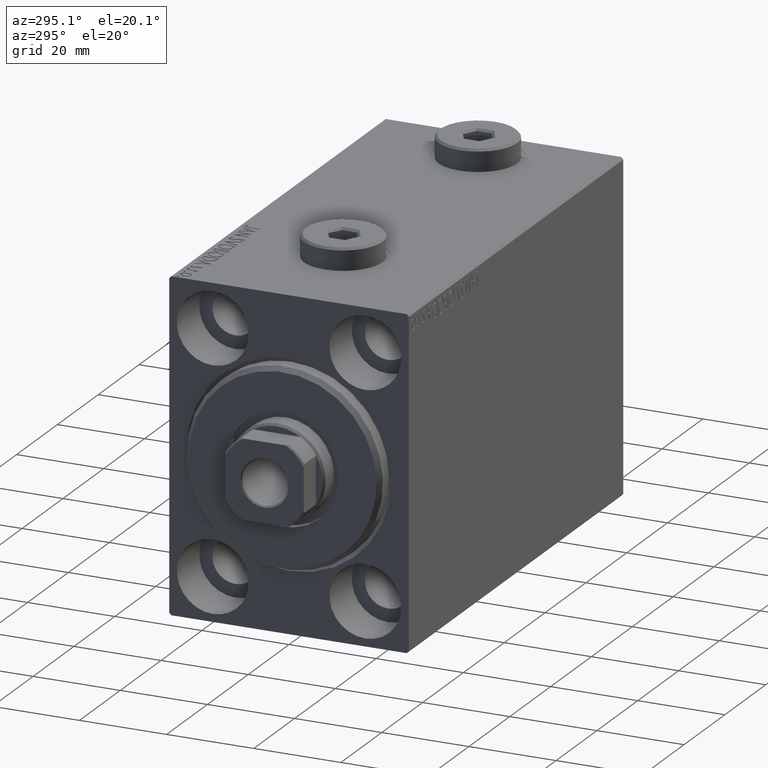
[diagram: clean part render]
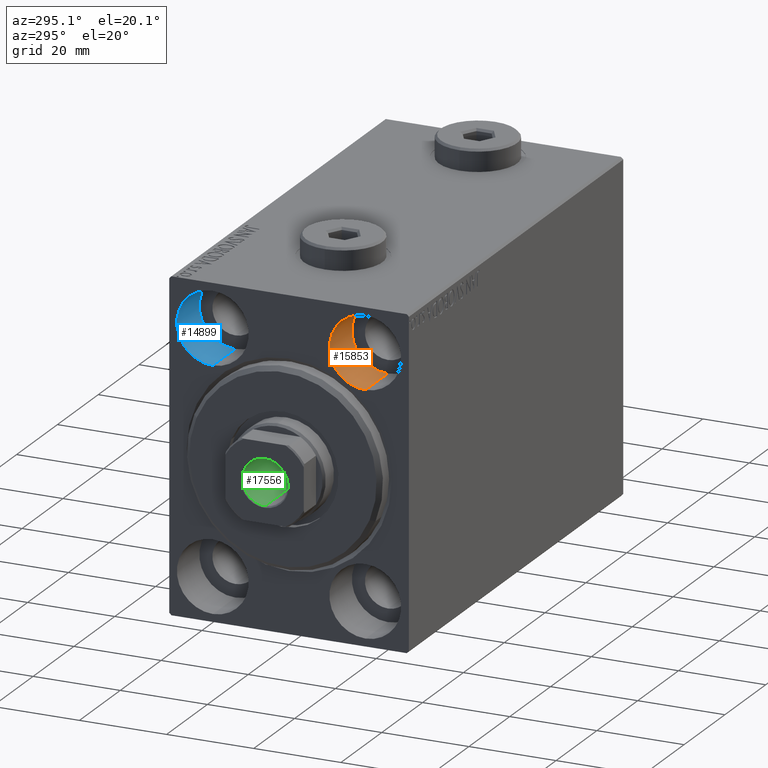
[diagram: same view with three faces highlighted in distinct colors, each labeled with its STEP entity id]
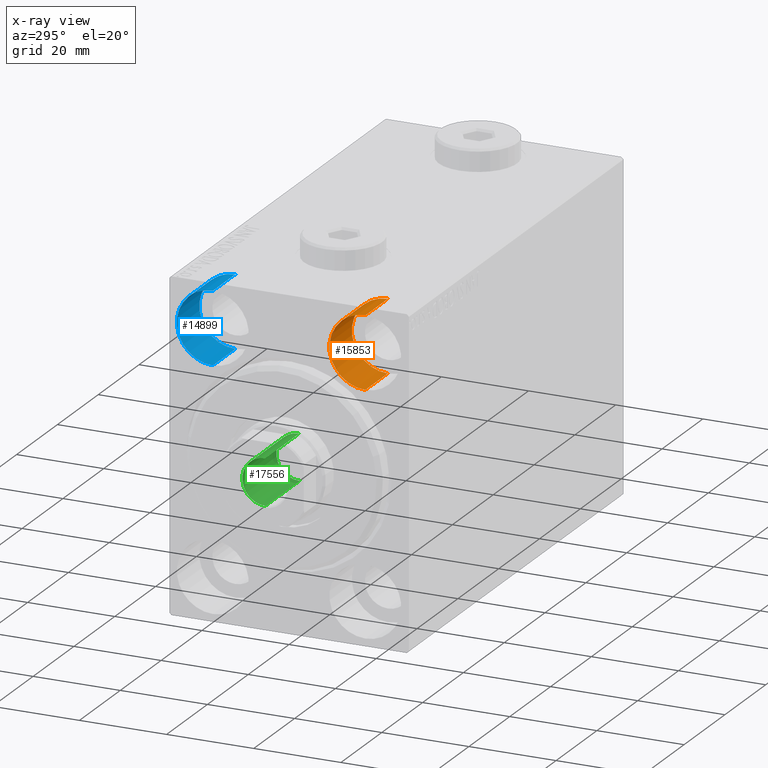
[diagram: x-ray of the same camera — body ghosted, the three highlighted faces saturated]
A machine part, auxiliary view with three faces highlighted in distinct colors.
The next image is the same camera in x-ray (body ghosted, the three faces saturated) — at least one of them is partly hidden behind the body in this view.
Their STEP definitions:

[orange] entity #15853 — the highlighted cylindrical surface (partial cylindrical patch) has radius 8.25 mm, axis along (-1, -0, -0).
#1685 = DIRECTION ( 'NONE',  ( 0.000000000000000000, 0.000000000000000000, 1.000000000000000000 ) ) ;
#2372 = DIRECTION ( 'NONE',  ( -1.000000000000000000, 0.000000000000000000, 0.000000000000000000 ) ) ;
#3354 = CARTESIAN_POINT ( 'NONE',  ( 0.000000000000000000, -17.49999999999999645, 35.74999999999999289 ) ) ;
#3373 = DIRECTION ( 'NONE',  ( -1.000000000000000000, -0.000000000000000000, -0.000000000000000000 ) ) ;
#5205 = EDGE_CURVE ( 'NONE', #10013, #23974, #33131, .T. ) ;
#5801 = ORIENTED_EDGE ( 'NONE', *, *, #5205, .T. ) ;
#7999 = EDGE_CURVE ( 'NONE', #11077, #16806, #35507, .T. ) ;
#10013 = VERTEX_POINT ( 'NONE', #3354 ) ;
#11077 = VERTEX_POINT ( 'NONE', #13605 ) ;
#12112 = CARTESIAN_POINT ( 'NONE',  ( 11.00000000000000000, -17.49999999999999645, 27.49999999999999645 ) ) ;
#13605 = CARTESIAN_POINT ( 'NONE',  ( 11.00000000000000000, -17.49999999999999645, 35.74999999999999289 ) ) ;
#15112 = AXIS2_PLACEMENT_3D ( 'NONE', #12112, #15322, #21728 ) ;
#15322 = DIRECTION ( 'NONE',  ( -1.000000000000000000, 0.000000000000000000, 0.000000000000000000 ) ) ;
#15853 = ADVANCED_FACE ( 'NONE', ( #24169 ), #41771, .F. ) ;
#16806 = VERTEX_POINT ( 'NONE', #18460 ) ;
#17318 = DIRECTION ( 'NONE',  ( 0.000000000000000000, 0.000000000000000000, 1.000000000000000000 ) ) ;
#18460 = CARTESIAN_POINT ( 'NONE',  ( 11.00000000000000000, -17.49999999999999645, 19.25000000000000000 ) ) ;
#19415 = LINE ( 'NONE', #33562, #30855 ) ;
#19556 = ORIENTED_EDGE ( 'NONE', *, *, #7999, .F. ) ;
#19703 = LINE ( 'NONE', #33624, #35997 ) ;
#20001 = AXIS2_PLACEMENT_3D ( 'NONE', #22959, #2372, #1685 ) ;
#21728 = DIRECTION ( 'NONE',  ( 0.000000000000000000, 0.000000000000000000, 1.000000000000000000 ) ) ;
#22959 = CARTESIAN_POINT ( 'NONE',  ( 0.000000000000000000, -17.49999999999999645, 27.49999999999999645 ) ) ;
#23974 = VERTEX_POINT ( 'NONE', #28001 ) ;
#24169 = FACE_OUTER_BOUND ( 'NONE', #45119, .T. ) ;
#25865 = DIRECTION ( 'NONE',  ( -1.000000000000000000, -0.000000000000000000, -0.000000000000000000 ) ) ;
#27195 = ORIENTED_EDGE ( 'NONE', *, *, #30500, .F. ) ;
#28001 = CARTESIAN_POINT ( 'NONE',  ( 0.000000000000000000, -17.49999999999999645, 19.25000000000000000 ) ) ;
#28805 = EDGE_CURVE ( 'NONE', #11077, #10013, #19415, .T. ) ;
#29450 = ORIENTED_EDGE ( 'NONE', *, *, #28805, .T. ) ;
#30500 = EDGE_CURVE ( 'NONE', #16806, #23974, #19703, .T. ) ;
#30855 = VECTOR ( 'NONE', #33332, 1000.000000000000000 ) ;
#33131 = CIRCLE ( 'NONE', #20001, 8.249999999999992895 ) ;
#33332 = DIRECTION ( 'NONE',  ( -1.000000000000000000, -0.000000000000000000, -0.000000000000000000 ) ) ;
#33562 = CARTESIAN_POINT ( 'NONE',  ( 11.00000000000000000, -17.49999999999999645, 35.74999999999999289 ) ) ;
#33624 = CARTESIAN_POINT ( 'NONE',  ( 11.00000000000000000, -17.49999999999999645, 19.25000000000000000 ) ) ;
#35507 = CIRCLE ( 'NONE', #15112, 8.249999999999992895 ) ;
#35997 = VECTOR ( 'NONE', #25865, 1000.000000000000000 ) ;
#37914 = AXIS2_PLACEMENT_3D ( 'NONE', #38110, #3373, #17318 ) ;
#38110 = CARTESIAN_POINT ( 'NONE',  ( 11.00000000000000000, -17.49999999999999645, 27.49999999999999645 ) ) ;
#41771 = CYLINDRICAL_SURFACE ( 'NONE', #37914, 8.249999999999992895 ) ;
#45119 = EDGE_LOOP ( 'NONE', ( #27195, #19556, #29450, #5801 ) ) ;

[blue] entity #14899 — the highlighted cylindrical surface (partial cylindrical patch) has radius 8.25 mm, axis along (-1, -0, -0).
#634 = AXIS2_PLACEMENT_3D ( 'NONE', #26171, #9039, #40120 ) ;
#659 = DIRECTION ( 'NONE',  ( -1.000000000000000000, -0.000000000000000000, -0.000000000000000000 ) ) ;
#4374 = LINE ( 'NONE', #39347, #40818 ) ;
#6604 = CARTESIAN_POINT ( 'NONE',  ( 11.00000000000000000, 17.50000000000000355, 19.25000000000000000 ) ) ;
#7465 = CARTESIAN_POINT ( 'NONE',  ( 0.000000000000000000, 17.50000000000000355, 27.49999999999999645 ) ) ;
#8281 = VECTOR ( 'NONE', #659, 1000.000000000000000 ) ;
#9039 = DIRECTION ( 'NONE',  ( -1.000000000000000000, -0.000000000000000000, -0.000000000000000000 ) ) ;
#9757 = CIRCLE ( 'NONE', #44774, 8.249999999999992895 ) ;
#10627 = VERTEX_POINT ( 'NONE', #25672 ) ;
#10866 = CARTESIAN_POINT ( 'NONE',  ( 11.00000000000000000, 17.50000000000000355, 35.74999999999999289 ) ) ;
#12233 = CYLINDRICAL_SURFACE ( 'NONE', #634, 8.249999999999992895 ) ;
#14899 = ADVANCED_FACE ( 'NONE', ( #40348 ), #12233, .F. ) ;
#15799 = EDGE_CURVE ( 'NONE', #10627, #41689, #36429, .T. ) ;
#17837 = LINE ( 'NONE', #41827, #8281 ) ;
#18136 = VERTEX_POINT ( 'NONE', #6604 ) ;
#19321 = CARTESIAN_POINT ( 'NONE',  ( 11.00000000000000000, 17.50000000000000355, 27.49999999999999645 ) ) ;
#19690 = EDGE_CURVE ( 'NONE', #31127, #10627, #4374, .T. ) ;
#22194 = ORIENTED_EDGE ( 'NONE', *, *, #30012, .F. ) ;
#25672 = CARTESIAN_POINT ( 'NONE',  ( 0.000000000000000000, 17.50000000000000355, 35.74999999999999289 ) ) ;
#26171 = CARTESIAN_POINT ( 'NONE',  ( 11.00000000000000000, 17.50000000000000355, 27.49999999999999645 ) ) ;
#28072 = ORIENTED_EDGE ( 'NONE', *, *, #35745, .F. ) ;
#29822 = DIRECTION ( 'NONE',  ( 0.000000000000000000, 0.000000000000000000, 1.000000000000000000 ) ) ;
#30012 = EDGE_CURVE ( 'NONE', #18136, #41689, #17837, .T. ) ;
#30699 = CARTESIAN_POINT ( 'NONE',  ( 0.000000000000000000, 17.50000000000000355, 19.25000000000000000 ) ) ;
#31127 = VERTEX_POINT ( 'NONE', #10866 ) ;
#31353 = DIRECTION ( 'NONE',  ( -1.000000000000000000, -0.000000000000000000, -0.000000000000000000 ) ) ;
#32419 = ORIENTED_EDGE ( 'NONE', *, *, #15799, .T. ) ;
#33838 = ORIENTED_EDGE ( 'NONE', *, *, #19690, .T. ) ;
#35745 = EDGE_CURVE ( 'NONE', #31127, #18136, #9757, .T. ) ;
#36429 = CIRCLE ( 'NONE', #37188, 8.249999999999992895 ) ;
#37188 = AXIS2_PLACEMENT_3D ( 'NONE', #7465, #41990, #45193 ) ;
#39347 = CARTESIAN_POINT ( 'NONE',  ( 11.00000000000000000, 17.50000000000000355, 35.74999999999999289 ) ) ;
#39688 = EDGE_LOOP ( 'NONE', ( #22194, #28072, #33838, #32419 ) ) ;
#40120 = DIRECTION ( 'NONE',  ( 0.000000000000000000, 0.000000000000000000, 1.000000000000000000 ) ) ;
#40348 = FACE_OUTER_BOUND ( 'NONE', #39688, .T. ) ;
#40818 = VECTOR ( 'NONE', #31353, 1000.000000000000000 ) ;
#41689 = VERTEX_POINT ( 'NONE', #30699 ) ;
#41827 = CARTESIAN_POINT ( 'NONE',  ( 11.00000000000000000, 17.50000000000000355, 19.25000000000000000 ) ) ;
#41990 = DIRECTION ( 'NONE',  ( -1.000000000000000000, 0.000000000000000000, 0.000000000000000000 ) ) ;
#44211 = DIRECTION ( 'NONE',  ( -1.000000000000000000, 0.000000000000000000, 0.000000000000000000 ) ) ;
#44774 = AXIS2_PLACEMENT_3D ( 'NONE', #19321, #44211, #29822 ) ;
#45193 = DIRECTION ( 'NONE',  ( 0.000000000000000000, 0.000000000000000000, 1.000000000000000000 ) ) ;

[green] entity #17556 — the highlighted cylindrical surface (edge-blend (fillet) strip) has radius 5.25 mm, axis along (-1, 0, 0).
#362 = AXIS2_PLACEMENT_3D ( 'NONE', #9045, #36909, #13541 ) ;
#514 = VERTEX_POINT ( 'NONE', #20832 ) ;
#959 = FACE_OUTER_BOUND ( 'NONE', #5342, .T. ) ;
#1912 = VERTEX_POINT ( 'NONE', #4525 ) ;
#2141 = CARTESIAN_POINT ( 'NONE',  ( 5.249999999999996447, 0.000000000000000000, 106.6999999999999886 ) ) ;
#3371 = ORIENTED_EDGE ( 'NONE', *, *, #32438, .T. ) ;
#4203 = LINE ( 'NONE', #35957, #24314 ) ;
#4525 = CARTESIAN_POINT ( 'NONE',  ( -5.249999999999996447, 6.429395695523600208E-16, 106.6999999999999886 ) ) ;
#4640 = EDGE_CURVE ( 'NONE', #11837, #1912, #4203, .T. ) ;
#4727 = CARTESIAN_POINT ( 'NONE',  ( -5.249999999999995559, 6.429395695523600208E-16, 90.00000000000001421 ) ) ;
#5342 = EDGE_LOOP ( 'NONE', ( #28788, #9619, #7736, #3371 ) ) ;
#5529 = CYLINDRICAL_SURFACE ( 'NONE', #41503, 5.249999999999996447 ) ;
#7736 = ORIENTED_EDGE ( 'NONE', *, *, #28299, .T. ) ;
#9045 = CARTESIAN_POINT ( 'NONE',  ( 0.000000000000000000, 0.000000000000000000, 90.00000000000001421 ) ) ;
#9619 = ORIENTED_EDGE ( 'NONE', *, *, #39693, .F. ) ;
#11837 = VERTEX_POINT ( 'NONE', #4727 ) ;
#11898 = AXIS2_PLACEMENT_3D ( 'NONE', #20249, #34173, #41279 ) ;
#13348 = VECTOR ( 'NONE', #39413, 1000.000000000000000 ) ;
#13541 = DIRECTION ( 'NONE',  ( 1.000000000000000000, 0.000000000000000000, 0.000000000000000000 ) ) ;
#16208 = VERTEX_POINT ( 'NONE', #2141 ) ;
#17556 = ADVANCED_FACE ( 'NONE', ( #959 ), #5529, .F. ) ;
#20249 = CARTESIAN_POINT ( 'NONE',  ( 0.000000000000000000, 0.000000000000000000, 106.6999999999999886 ) ) ;
#20832 = CARTESIAN_POINT ( 'NONE',  ( 5.249999999999995559, 0.000000000000000000, 90.00000000000001421 ) ) ;
#22715 = LINE ( 'NONE', #35737, #13348 ) ;
#24314 = VECTOR ( 'NONE', #35732, 1000.000000000000000 ) ;
#28299 = EDGE_CURVE ( 'NONE', #514, #16208, #22715, .T. ) ;
#28788 = ORIENTED_EDGE ( 'NONE', *, *, #4640, .F. ) ;
#32438 = EDGE_CURVE ( 'NONE', #16208, #1912, #33786, .T. ) ;
#33631 = DIRECTION ( 'NONE',  ( 1.000000000000000000, 0.000000000000000000, 0.000000000000000000 ) ) ;
#33786 = CIRCLE ( 'NONE', #11898, 5.249999999999996447 ) ;
#34173 = DIRECTION ( 'NONE',  ( 0.000000000000000000, 0.000000000000000000, 1.000000000000000000 ) ) ;
#35732 = DIRECTION ( 'NONE',  ( -0.000000000000000000, -0.000000000000000000, 1.000000000000000000 ) ) ;
#35737 = CARTESIAN_POINT ( 'NONE',  ( 5.249999999999996447, 0.000000000000000000, 107.0000000000000142 ) ) ;
#35957 = CARTESIAN_POINT ( 'NONE',  ( -5.249999999999996447, 6.429395695523600208E-16, 107.0000000000000142 ) ) ;
#36828 = CARTESIAN_POINT ( 'NONE',  ( 0.000000000000000000, 0.000000000000000000, 107.0000000000000142 ) ) ;
#36909 = DIRECTION ( 'NONE',  ( -0.000000000000000000, -0.000000000000000000, 1.000000000000000000 ) ) ;
#39413 = DIRECTION ( 'NONE',  ( -0.000000000000000000, -0.000000000000000000, 1.000000000000000000 ) ) ;
#39693 = EDGE_CURVE ( 'NONE', #514, #11837, #41971, .T. ) ;
#41279 = DIRECTION ( 'NONE',  ( 1.000000000000000000, 0.000000000000000000, 0.000000000000000000 ) ) ;
#41503 = AXIS2_PLACEMENT_3D ( 'NONE', #36828, #44590, #33631 ) ;
#41971 = CIRCLE ( 'NONE', #362, 5.249999999999995559 ) ;
#44590 = DIRECTION ( 'NONE',  ( -0.000000000000000000, -0.000000000000000000, 1.000000000000000000 ) ) ;